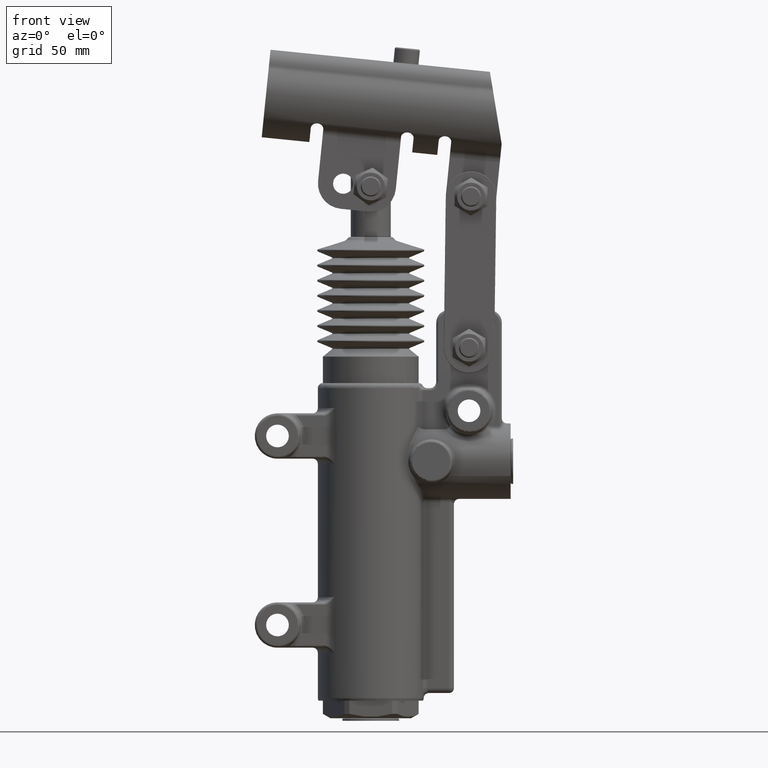
[diagram: clean part render]
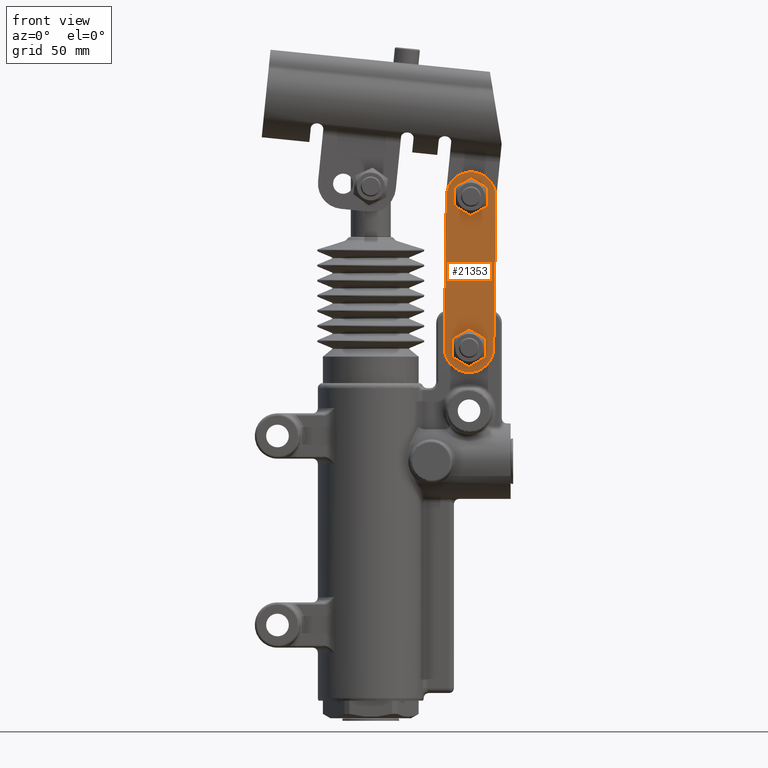
[diagram: same view with one face highlighted and labeled with its STEP entity id]
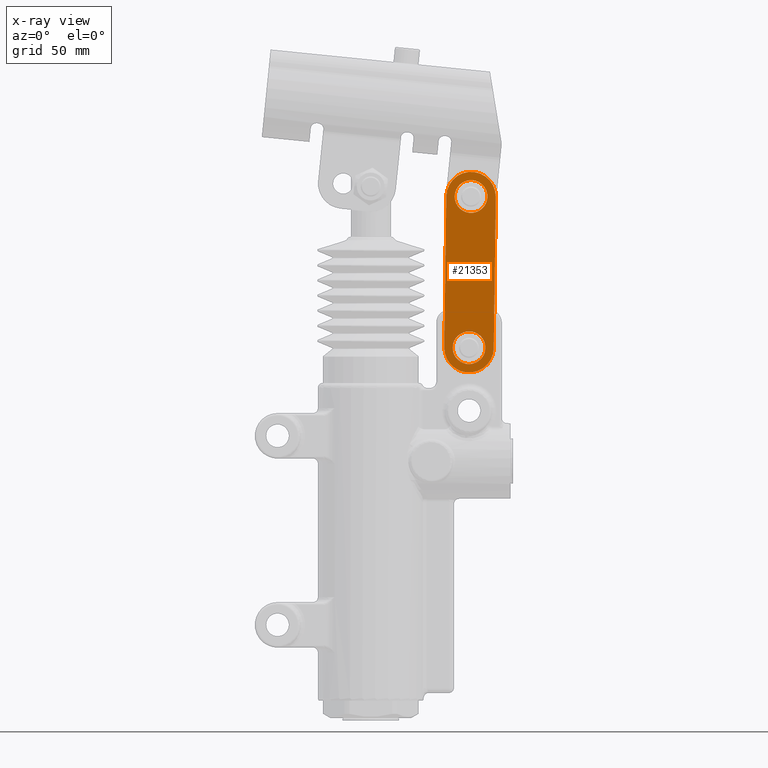
[diagram: x-ray of the same camera — body ghosted, the highlighted face saturated]
A machine part, front view. The second image highlights one B-rep face of the part: STEP entity #21353.
The next image is the same camera in x-ray: the body ghosted, the highlighted face saturated — about 0% of this face is hidden behind the body in this view.
In plain terms, the highlighted planar face has unit normal (0, 1, 0).
Its self-contained STEP definition (entity closure, byte-faithful):
#19140=CARTESIAN_POINT('',(35.750000000000014,-12.000000000000083,146.62916512459881));
#19141=VERTEX_POINT('',#19140);
#19157=CARTESIAN_POINT('',(32.500000000000007,-12.000000000000089,140.99999999999997));
#19158=VERTEX_POINT('',#19157);
#19159=CARTESIAN_POINT('',(39.000000000000007,-12.000000000000103,140.99999999999997));
#19160=DIRECTION('',(-6.202758E-016,1.0,-3.581164E-016));
#19161=DIRECTION('',(0.866025403784439,7.162328E-016,0.5));
#19162=AXIS2_PLACEMENT_3D('',#19159,#19160,#19161);
#19163=CIRCLE('',#19162,6.50000000000003);
#19164=EDGE_CURVE('',#19158,#19141,#19163,.T.);
#19189=CARTESIAN_POINT('',(35.750000000000014,-12.000000000000091,135.3708348754011));
#19190=VERTEX_POINT('',#19189);
#19217=CARTESIAN_POINT('',(39.000000000000007,-12.000000000000103,140.99999999999997));
#19218=DIRECTION('',(-6.202758E-016,1.0,-3.581164E-016));
#19219=DIRECTION('',(0.866025403784439,7.162328E-016,0.5));
#19220=AXIS2_PLACEMENT_3D('',#19217,#19218,#19219);
#19221=CIRCLE('',#19220,6.50000000000003);
#19222=EDGE_CURVE('',#19190,#19158,#19221,.T.);
#19232=CARTESIAN_POINT('',(42.250000000000007,-12.00000000000008,146.62916512459881));
#19233=VERTEX_POINT('',#19232);
#19249=CARTESIAN_POINT('',(39.000000000000007,-12.000000000000103,140.99999999999997));
#19250=DIRECTION('',(-6.202758E-016,1.0,-3.581164E-016));
#19251=DIRECTION('',(0.866025403784439,7.162328E-016,0.5));
#19252=AXIS2_PLACEMENT_3D('',#19249,#19250,#19251);
#19253=CIRCLE('',#19252,6.50000000000003);
#19254=EDGE_CURVE('',#19141,#19233,#19253,.T.);
#19279=CARTESIAN_POINT('',(42.250000000000021,-12.000000000000089,135.3708348754011));
#19280=VERTEX_POINT('',#19279);
#19307=CARTESIAN_POINT('',(39.000000000000007,-12.000000000000103,140.99999999999997));
#19308=DIRECTION('',(-6.202758E-016,1.0,-3.581164E-016));
#19309=DIRECTION('',(0.866025403784439,7.162328E-016,0.5));
#19310=AXIS2_PLACEMENT_3D('',#19307,#19308,#19309);
#19311=CIRCLE('',#19310,6.50000000000003);
#19312=EDGE_CURVE('',#19280,#19190,#19311,.T.);
#19322=CARTESIAN_POINT('',(45.500000000000007,-12.000000000000083,140.99999999999997));
#19323=VERTEX_POINT('',#19322);
#19339=CARTESIAN_POINT('',(39.000000000000007,-12.000000000000103,140.99999999999997));
#19340=DIRECTION('',(-6.202758E-016,1.0,-3.581164E-016));
#19341=DIRECTION('',(0.866025403784439,7.162328E-016,0.5));
#19342=AXIS2_PLACEMENT_3D('',#19339,#19340,#19341);
#19343=CIRCLE('',#19342,6.50000000000003);
#19344=EDGE_CURVE('',#19233,#19323,#19343,.T.);
#19395=CARTESIAN_POINT('',(39.000000000000007,-12.000000000000103,140.99999999999997));
#19396=DIRECTION('',(-6.202758E-016,1.0,-3.581164E-016));
#19397=DIRECTION('',(0.866025403784439,7.162328E-016,0.5));
#19398=AXIS2_PLACEMENT_3D('',#19395,#19396,#19397);
#19399=CIRCLE('',#19398,6.50000000000003);
#19400=EDGE_CURVE('',#19323,#19280,#19399,.T.);
#19660=CARTESIAN_POINT('',(43.123632512488363,-12.000000000000091,206.58006915102936));
#19661=VERTEX_POINT('',#19660);
#19677=CARTESIAN_POINT('',(36.624208818132857,-12.000000000000078,206.66662341868971));
#19678=VERTEX_POINT('',#19677);
#19679=CARTESIAN_POINT('',(39.798962470710791,-12.000000000000083,200.99468025558917));
#19680=DIRECTION('',(1.506401E-015,1.0,-8.966761E-016));
#19681=DIRECTION('',(0.859290599298493,-1.753075E-015,-0.511487698735011));
#19682=AXIS2_PLACEMENT_3D('',#19679,#19680,#19681);
#19683=CIRCLE('',#19682,6.5);
#19684=EDGE_CURVE('',#19678,#19661,#19683,.T.);
#19709=CARTESIAN_POINT('',(33.299538776355291,-12.000000000000071,201.08123452324949));
#19710=VERTEX_POINT('',#19709);
#19737=CARTESIAN_POINT('',(39.798962470710791,-12.000000000000083,200.99468025558917));
#19738=DIRECTION('',(1.506401E-015,1.0,-8.966761E-016));
#19739=DIRECTION('',(0.859290599298493,-1.753075E-015,-0.511487698735011));
#19740=AXIS2_PLACEMENT_3D('',#19737,#19738,#19739);
#19741=CIRCLE('',#19740,6.5);
#19742=EDGE_CURVE('',#19710,#19678,#19741,.T.);
#19752=CARTESIAN_POINT('',(46.298386165066304,-12.000000000000098,200.90812598792883));
#19753=VERTEX_POINT('',#19752);
#19769=CARTESIAN_POINT('',(39.798962470710791,-12.000000000000083,200.99468025558917));
#19770=DIRECTION('',(1.506401E-015,1.0,-8.966761E-016));
#19771=DIRECTION('',(0.859290599298493,-1.753075E-015,-0.511487698735011));
#19772=AXIS2_PLACEMENT_3D('',#19769,#19770,#19771);
#19773=CIRCLE('',#19772,6.5);
#19774=EDGE_CURVE('',#19661,#19753,#19773,.T.);
#19799=CARTESIAN_POINT('',(36.474292428933232,-12.000000000000078,195.40929136014896));
#19800=VERTEX_POINT('',#19799);
#19827=CARTESIAN_POINT('',(39.798962470710791,-12.000000000000083,200.99468025558917));
#19828=DIRECTION('',(1.506401E-015,1.0,-8.966761E-016));
#19829=DIRECTION('',(0.859290599298493,-1.753075E-015,-0.511487698735011));
#19830=AXIS2_PLACEMENT_3D('',#19827,#19828,#19829);
#19831=CIRCLE('',#19830,6.5);
#19832=EDGE_CURVE('',#19800,#19710,#19831,.T.);
#19842=CARTESIAN_POINT('',(42.973716123288739,-12.000000000000091,195.32273709248864));
#19843=VERTEX_POINT('',#19842);
#19859=CARTESIAN_POINT('',(39.798962470710791,-12.000000000000083,200.99468025558917));
#19860=DIRECTION('',(1.506401E-015,1.0,-8.966761E-016));
#19861=DIRECTION('',(0.859290599298493,-1.753075E-015,-0.511487698735011));
#19862=AXIS2_PLACEMENT_3D('',#19859,#19860,#19861);
#19863=CIRCLE('',#19862,6.5);
#19864=EDGE_CURVE('',#19753,#19843,#19863,.T.);
#19915=CARTESIAN_POINT('',(39.798962470710791,-12.000000000000083,200.99468025558917));
#19916=DIRECTION('',(1.506401E-015,1.0,-8.966761E-016));
#19917=DIRECTION('',(0.859290599298493,-1.753075E-015,-0.511487698735011));
#19918=AXIS2_PLACEMENT_3D('',#19915,#19916,#19917);
#19919=CIRCLE('',#19918,6.5);
#19920=EDGE_CURVE('',#19843,#19800,#19919,.T.);
#21143=CARTESIAN_POINT('',(29.200868891587103,-12.000000000000062,141.13049720354945));
#21144=VERTEX_POINT('',#21143);
#21163=CARTESIAN_POINT('',(48.799131108412922,-12.000000000000103,140.86950279645058));
#21164=VERTEX_POINT('',#21163);
#21172=CARTESIAN_POINT('',(39.000000000000014,-12.000000000000082,141.0));
#21173=DIRECTION('',(3.659696E-019,1.0,2.748093E-017));
#21174=DIRECTION('',(-0.013316041178514,2.748336E-017,-0.999911337593155));
#21175=AXIS2_PLACEMENT_3D('',#21172,#21173,#21174);
#21176=CIRCLE('',#21175,9.799999999999992);
#21177=EDGE_CURVE('',#21164,#21144,#21176,.T.);
#21187=CARTESIAN_POINT('',(29.999831362297918,-12.000000000000064,201.12517745913877));
#21188=VERTEX_POINT('',#21187);
#21205=CARTESIAN_POINT('',(29.200868891587085,-12.000000000000062,141.13049720354945));
#21206=DIRECTION('',(0.013316041178514,-2.960595E-017,0.999911337593155));
#21207=VECTOR('',#21206,59.999999999999993);
#21208=LINE('',#21205,#21207);
#21209=EDGE_CURVE('',#21144,#21188,#21208,.T.);
#21221=CARTESIAN_POINT('',(49.598093579123763,-12.000000000000103,200.86418305203983));
#21222=VERTEX_POINT('',#21221);
#21230=CARTESIAN_POINT('',(49.598093579123756,-12.000000000000105,200.86418305203986));
#21231=DIRECTION('',(-0.013316041178514,2.960595E-017,-0.999911337593155));
#21232=VECTOR('',#21231,59.999999999999993);
#21233=LINE('',#21230,#21232);
#21234=EDGE_CURVE('',#21222,#21164,#21233,.T.);
#21252=CARTESIAN_POINT('',(39.798962470710833,-12.000000000000083,200.99468025558932));
#21253=DIRECTION('',(3.659696E-019,1.0,2.748093E-017));
#21254=DIRECTION('',(0.013316041178514,-2.748336E-017,0.999911337593155));
#21255=AXIS2_PLACEMENT_3D('',#21252,#21253,#21254);
#21256=CIRCLE('',#21255,9.799999999999999);
#21257=EDGE_CURVE('',#21188,#21222,#21256,.T.);
#21326=CARTESIAN_POINT('',(39.399481235355424,-12.000000000000083,170.99734012779467));
#21327=DIRECTION('',(0.0,1.0,0.0));
#21328=DIRECTION('',(0.013316041178514,0.0,0.999911337593155));
#21329=AXIS2_PLACEMENT_3D('',#21326,#21327,#21328);
#21330=PLANE('',#21329);
#21331=ORIENTED_EDGE('',*,*,#21177,.F.);
#21332=ORIENTED_EDGE('',*,*,#21234,.F.);
#21333=ORIENTED_EDGE('',*,*,#21257,.F.);
#21334=ORIENTED_EDGE('',*,*,#21209,.F.);
#21335=EDGE_LOOP('',(#21331,#21332,#21333,#21334));
#21336=FACE_OUTER_BOUND('',#21335,.T.);
#21337=ORIENTED_EDGE('',*,*,#19164,.T.);
#21338=ORIENTED_EDGE('',*,*,#19254,.T.);
#21339=ORIENTED_EDGE('',*,*,#19344,.T.);
#21340=ORIENTED_EDGE('',*,*,#19400,.T.);
#21341=ORIENTED_EDGE('',*,*,#19312,.T.);
#21342=ORIENTED_EDGE('',*,*,#19222,.T.);
#21343=EDGE_LOOP('',(#21337,#21338,#21339,#21340,#21341,#21342));
#21344=FACE_BOUND('',#21343,.T.);
#21345=ORIENTED_EDGE('',*,*,#19684,.T.);
#21346=ORIENTED_EDGE('',*,*,#19774,.T.);
#21347=ORIENTED_EDGE('',*,*,#19864,.T.);
#21348=ORIENTED_EDGE('',*,*,#19920,.T.);
#21349=ORIENTED_EDGE('',*,*,#19832,.T.);
#21350=ORIENTED_EDGE('',*,*,#19742,.T.);
#21351=EDGE_LOOP('',(#21345,#21346,#21347,#21348,#21349,#21350));
#21352=FACE_BOUND('',#21351,.T.);
#21353=ADVANCED_FACE('',(#21336,#21344,#21352),#21330,.F.);